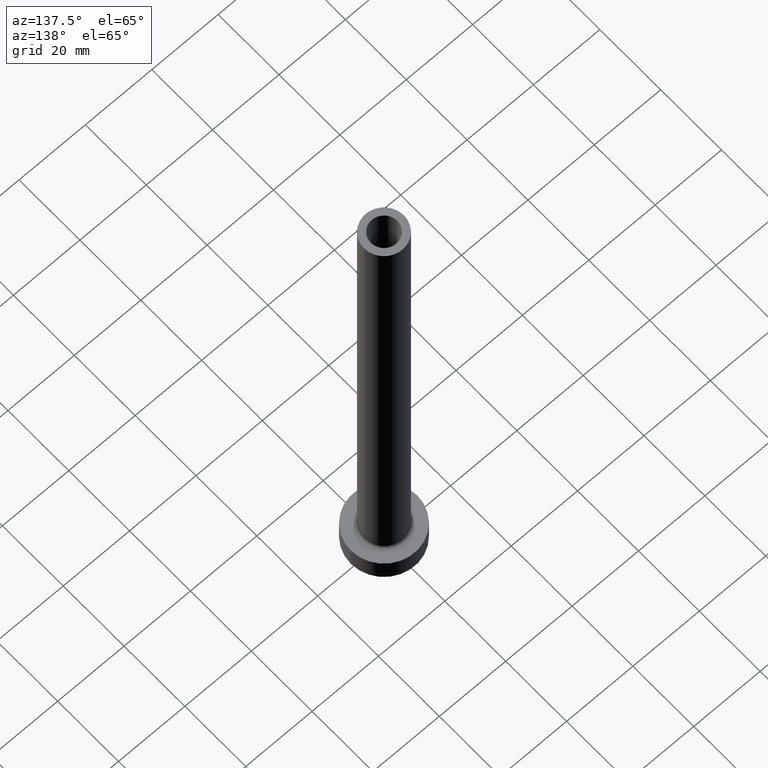
[diagram: clean part render]
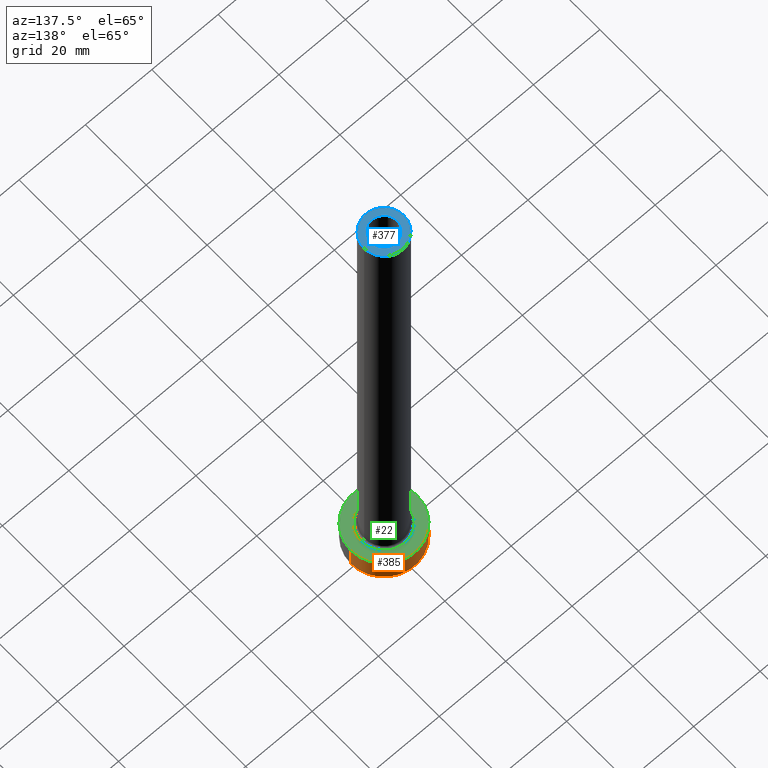
[diagram: same view with three faces highlighted in distinct colors, each labeled with its STEP entity id]
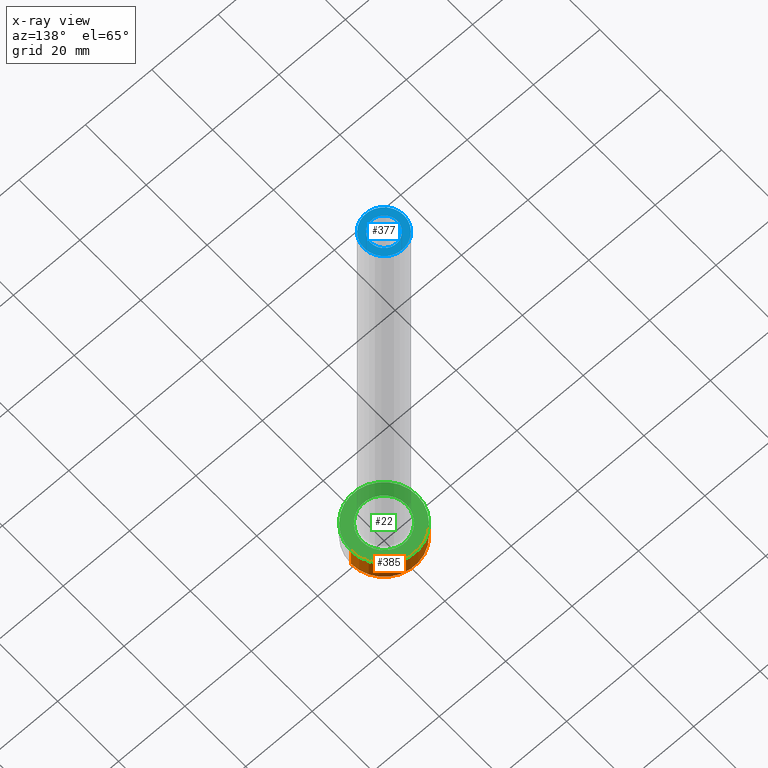
[diagram: x-ray of the same camera — body ghosted, the three highlighted faces saturated]
A machine part, auxiliary view with three faces highlighted in distinct colors.
The next image is the same camera in x-ray (body ghosted, the three faces saturated) — at least one of them is partly hidden behind the body in this view.
Their STEP definitions:

[orange] entity #385 — the highlighted cylindrical surface (partial cylindrical patch) has radius 10 mm, axis along (-0, -0, -1).
#16 = ORIENTED_EDGE ( 'NONE', *, *, #203, .F. ) ;
#17 = AXIS2_PLACEMENT_3D ( 'NONE', #457, #315, #384 ) ;
#41 = CARTESIAN_POINT ( 'NONE',  ( 10.00000000000000000, 1.224646799147353256E-15, 0.000000000000000000 ) ) ;
#57 = DIRECTION ( 'NONE',  ( 1.000000000000000000, 0.000000000000000000, 0.000000000000000000 ) ) ;
#63 = DIRECTION ( 'NONE',  ( -0.000000000000000000, -0.000000000000000000, -1.000000000000000000 ) ) ;
#84 = CARTESIAN_POINT ( 'NONE',  ( 0.000000000000000000, 0.000000000000000000, 0.000000000000000000 ) ) ;
#87 = VECTOR ( 'NONE', #63, 1000.000000000000000 ) ;
#91 = VERTEX_POINT ( 'NONE', #41 ) ;
#99 = ORIENTED_EDGE ( 'NONE', *, *, #119, .T. ) ;
#119 = EDGE_CURVE ( 'NONE', #91, #386, #227, .T. ) ;
#121 = DIRECTION ( 'NONE',  ( 0.000000000000000000, 0.000000000000000000, 1.000000000000000000 ) ) ;
#124 = DIRECTION ( 'NONE',  ( 1.000000000000000000, 0.000000000000000000, 0.000000000000000000 ) ) ;
#139 = CARTESIAN_POINT ( 'NONE',  ( -10.00000000000000000, 0.000000000000000000, 7.000000000000000000 ) ) ;
#193 = DIRECTION ( 'NONE',  ( -0.000000000000000000, -0.000000000000000000, -1.000000000000000000 ) ) ;
#195 = VERTEX_POINT ( 'NONE', #435 ) ;
#203 = EDGE_CURVE ( 'NONE', #195, #234, #394, .T. ) ;
#207 = CARTESIAN_POINT ( 'NONE',  ( -10.00000000000000000, 0.000000000000000000, 7.000000000000000000 ) ) ;
#209 = LINE ( 'NONE', #334, #237 ) ;
#212 = CARTESIAN_POINT ( 'NONE',  ( -10.00000000000000000, 0.000000000000000000, 0.000000000000000000 ) ) ;
#227 = CIRCLE ( 'NONE', #346, 10.00000000000000000 ) ;
#234 = VERTEX_POINT ( 'NONE', #139 ) ;
#237 = VECTOR ( 'NONE', #193, 1000.000000000000000 ) ;
#274 = EDGE_LOOP ( 'NONE', ( #16, #369, #99, #419 ) ) ;
#278 = AXIS2_PLACEMENT_3D ( 'NONE', #370, #121, #57 ) ;
#296 = EDGE_CURVE ( 'NONE', #234, #386, #305, .T. ) ;
#305 = LINE ( 'NONE', #207, #87 ) ;
#315 = DIRECTION ( 'NONE',  ( -0.000000000000000000, -0.000000000000000000, -1.000000000000000000 ) ) ;
#334 = CARTESIAN_POINT ( 'NONE',  ( 10.00000000000000000, 1.224646799147353256E-15, 7.000000000000000000 ) ) ;
#336 = DIRECTION ( 'NONE',  ( 0.000000000000000000, 0.000000000000000000, 1.000000000000000000 ) ) ;
#346 = AXIS2_PLACEMENT_3D ( 'NONE', #84, #336, #124 ) ;
#352 = FACE_OUTER_BOUND ( 'NONE', #274, .T. ) ;
#369 = ORIENTED_EDGE ( 'NONE', *, *, #413, .T. ) ;
#370 = CARTESIAN_POINT ( 'NONE',  ( 0.000000000000000000, 0.000000000000000000, 7.000000000000000000 ) ) ;
#384 = DIRECTION ( 'NONE',  ( -1.000000000000000000, 0.000000000000000000, 0.000000000000000000 ) ) ;
#385 = ADVANCED_FACE ( 'NONE', ( #352 ), #458, .T. ) ;
#386 = VERTEX_POINT ( 'NONE', #212 ) ;
#394 = CIRCLE ( 'NONE', #278, 10.00000000000000000 ) ;
#413 = EDGE_CURVE ( 'NONE', #195, #91, #209, .T. ) ;
#419 = ORIENTED_EDGE ( 'NONE', *, *, #296, .F. ) ;
#435 = CARTESIAN_POINT ( 'NONE',  ( 10.00000000000000000, 1.224646799147353256E-15, 7.000000000000000000 ) ) ;
#457 = CARTESIAN_POINT ( 'NONE',  ( 0.000000000000000000, 0.000000000000000000, 7.000000000000000000 ) ) ;
#458 = CYLINDRICAL_SURFACE ( 'NONE', #17, 10.00000000000000000 ) ;

[blue] entity #377 — the highlighted planar face has unit normal (0, 0, 1).
#2 = CARTESIAN_POINT ( 'NONE',  ( 0.000000000000000000, 0.000000000000000000, 160.0000000000000000 ) ) ;
#6 = AXIS2_PLACEMENT_3D ( 'NONE', #95, #412, #376 ) ;
#23 = CARTESIAN_POINT ( 'NONE',  ( 4.000000000000000000, 4.898587196589411843E-16, 160.0000000000000000 ) ) ;
#24 = DIRECTION ( 'NONE',  ( 0.000000000000000000, 0.000000000000000000, 1.000000000000000000 ) ) ;
#64 = FACE_BOUND ( 'NONE', #415, .T. ) ;
#68 = DIRECTION ( 'NONE',  ( 0.000000000000000000, 0.000000000000000000, 1.000000000000000000 ) ) ;
#95 = CARTESIAN_POINT ( 'NONE',  ( 0.000000000000000000, 0.000000000000000000, 160.0000000000000000 ) ) ;
#102 = CARTESIAN_POINT ( 'NONE',  ( 6.000000000000000888, 7.347880794884120722E-16, 160.0000000000000000 ) ) ;
#103 = EDGE_CURVE ( 'NONE', #192, #104, #444, .T. ) ;
#104 = VERTEX_POINT ( 'NONE', #102 ) ;
#108 = DIRECTION ( 'NONE',  ( 1.000000000000000000, 0.000000000000000000, 0.000000000000000000 ) ) ;
#143 = DIRECTION ( 'NONE',  ( 0.000000000000000000, 0.000000000000000000, 1.000000000000000000 ) ) ;
#153 = ORIENTED_EDGE ( 'NONE', *, *, #349, .F. ) ;
#170 = CIRCLE ( 'NONE', #411, 6.000000000000000888 ) ;
#171 = PLANE ( 'NONE',  #243 ) ;
#192 = VERTEX_POINT ( 'NONE', #229 ) ;
#202 = DIRECTION ( 'NONE',  ( 1.000000000000000000, 0.000000000000000000, 0.000000000000000000 ) ) ;
#204 = FACE_OUTER_BOUND ( 'NONE', #228, .T. ) ;
#206 = VERTEX_POINT ( 'NONE', #338 ) ;
#228 = EDGE_LOOP ( 'NONE', ( #456, #261 ) ) ;
#229 = CARTESIAN_POINT ( 'NONE',  ( -6.000000000000000888, 0.000000000000000000, 160.0000000000000000 ) ) ;
#243 = AXIS2_PLACEMENT_3D ( 'NONE', #273, #414, #378 ) ;
#261 = ORIENTED_EDGE ( 'NONE', *, *, #373, .T. ) ;
#266 = EDGE_CURVE ( 'NONE', #206, #317, #361, .T. ) ;
#273 = CARTESIAN_POINT ( 'NONE',  ( 0.000000000000000000, 0.000000000000000000, 160.0000000000000000 ) ) ;
#310 = CARTESIAN_POINT ( 'NONE',  ( 0.000000000000000000, 0.000000000000000000, 160.0000000000000000 ) ) ;
#317 = VERTEX_POINT ( 'NONE', #23 ) ;
#322 = CARTESIAN_POINT ( 'NONE',  ( 0.000000000000000000, 0.000000000000000000, 160.0000000000000000 ) ) ;
#338 = CARTESIAN_POINT ( 'NONE',  ( -4.000000000000000000, 0.000000000000000000, 160.0000000000000000 ) ) ;
#349 = EDGE_CURVE ( 'NONE', #317, #206, #453, .T. ) ;
#354 = DIRECTION ( 'NONE',  ( 1.000000000000000000, 0.000000000000000000, 0.000000000000000000 ) ) ;
#357 = ORIENTED_EDGE ( 'NONE', *, *, #266, .F. ) ;
#361 = CIRCLE ( 'NONE', #461, 4.000000000000000000 ) ;
#373 = EDGE_CURVE ( 'NONE', #104, #192, #170, .T. ) ;
#376 = DIRECTION ( 'NONE',  ( 1.000000000000000000, 0.000000000000000000, 0.000000000000000000 ) ) ;
#377 = ADVANCED_FACE ( 'NONE', ( #64, #204 ), #171, .T. ) ;
#378 = DIRECTION ( 'NONE',  ( 1.000000000000000000, 0.000000000000000000, -0.000000000000000000 ) ) ;
#411 = AXIS2_PLACEMENT_3D ( 'NONE', #310, #24, #202 ) ;
#412 = DIRECTION ( 'NONE',  ( 0.000000000000000000, 0.000000000000000000, 1.000000000000000000 ) ) ;
#414 = DIRECTION ( 'NONE',  ( 0.000000000000000000, 0.000000000000000000, 1.000000000000000000 ) ) ;
#415 = EDGE_LOOP ( 'NONE', ( #357, #153 ) ) ;
#421 = AXIS2_PLACEMENT_3D ( 'NONE', #2, #68, #354 ) ;
#444 = CIRCLE ( 'NONE', #421, 6.000000000000000888 ) ;
#453 = CIRCLE ( 'NONE', #6, 4.000000000000000000 ) ;
#456 = ORIENTED_EDGE ( 'NONE', *, *, #103, .T. ) ;
#461 = AXIS2_PLACEMENT_3D ( 'NONE', #322, #143, #108 ) ;

[green] entity #22 — the highlighted planar face has unit normal (0, 0, 1).
#5 = DIRECTION ( 'NONE',  ( 1.000000000000000000, 0.000000000000000000, -0.000000000000000000 ) ) ;
#8 = DIRECTION ( 'NONE',  ( 1.000000000000000000, 0.000000000000000000, 0.000000000000000000 ) ) ;
#19 = DIRECTION ( 'NONE',  ( -0.000000000000000000, -0.000000000000000000, -1.000000000000000000 ) ) ;
#22 = ADVANCED_FACE ( 'NONE', ( #294, #332 ), #327, .T. ) ;
#56 = EDGE_CURVE ( 'NONE', #69, #321, #105, .T. ) ;
#57 = DIRECTION ( 'NONE',  ( 1.000000000000000000, 0.000000000000000000, 0.000000000000000000 ) ) ;
#60 = AXIS2_PLACEMENT_3D ( 'NONE', #406, #233, #440 ) ;
#69 = VERTEX_POINT ( 'NONE', #382 ) ;
#105 = CIRCLE ( 'NONE', #60, 6.700000000000001066 ) ;
#112 = EDGE_CURVE ( 'NONE', #234, #195, #136, .T. ) ;
#118 = EDGE_LOOP ( 'NONE', ( #351, #126 ) ) ;
#121 = DIRECTION ( 'NONE',  ( 0.000000000000000000, 0.000000000000000000, 1.000000000000000000 ) ) ;
#126 = ORIENTED_EDGE ( 'NONE', *, *, #56, .T. ) ;
#132 = EDGE_CURVE ( 'NONE', #321, #69, #312, .T. ) ;
#136 = CIRCLE ( 'NONE', #244, 10.00000000000000000 ) ;
#139 = CARTESIAN_POINT ( 'NONE',  ( -10.00000000000000000, 0.000000000000000000, 7.000000000000000000 ) ) ;
#155 = DIRECTION ( 'NONE',  ( 0.000000000000000000, 0.000000000000000000, 1.000000000000000000 ) ) ;
#187 = DIRECTION ( 'NONE',  ( 0.000000000000000000, 0.000000000000000000, 1.000000000000000000 ) ) ;
#195 = VERTEX_POINT ( 'NONE', #435 ) ;
#200 = ORIENTED_EDGE ( 'NONE', *, *, #203, .T. ) ;
#203 = EDGE_CURVE ( 'NONE', #195, #234, #394, .T. ) ;
#224 = CARTESIAN_POINT ( 'NONE',  ( 0.000000000000000000, 0.000000000000000000, 7.000000000000000000 ) ) ;
#230 = CARTESIAN_POINT ( 'NONE',  ( 0.000000000000000000, 0.000000000000000000, 7.000000000000000000 ) ) ;
#232 = DIRECTION ( 'NONE',  ( 1.000000000000000000, 0.000000000000000000, 0.000000000000000000 ) ) ;
#233 = DIRECTION ( 'NONE',  ( -0.000000000000000000, -0.000000000000000000, -1.000000000000000000 ) ) ;
#234 = VERTEX_POINT ( 'NONE', #139 ) ;
#244 = AXIS2_PLACEMENT_3D ( 'NONE', #224, #155, #232 ) ;
#258 = CARTESIAN_POINT ( 'NONE',  ( 0.000000000000000000, 0.000000000000000000, 7.000000000000000000 ) ) ;
#278 = AXIS2_PLACEMENT_3D ( 'NONE', #370, #121, #57 ) ;
#294 = FACE_BOUND ( 'NONE', #118, .T. ) ;
#308 = CARTESIAN_POINT ( 'NONE',  ( 6.700000000000001066, 0.000000000000000000, 7.000000000000006217 ) ) ;
#312 = CIRCLE ( 'NONE', #428, 6.700000000000001066 ) ;
#321 = VERTEX_POINT ( 'NONE', #308 ) ;
#327 = PLANE ( 'NONE',  #366 ) ;
#332 = FACE_OUTER_BOUND ( 'NONE', #389, .T. ) ;
#351 = ORIENTED_EDGE ( 'NONE', *, *, #132, .T. ) ;
#366 = AXIS2_PLACEMENT_3D ( 'NONE', #230, #187, #5 ) ;
#370 = CARTESIAN_POINT ( 'NONE',  ( 0.000000000000000000, 0.000000000000000000, 7.000000000000000000 ) ) ;
#382 = CARTESIAN_POINT ( 'NONE',  ( -6.700000000000001066, 8.205133554287267548E-16, 7.000000000000006217 ) ) ;
#389 = EDGE_LOOP ( 'NONE', ( #442, #200 ) ) ;
#394 = CIRCLE ( 'NONE', #278, 10.00000000000000000 ) ;
#406 = CARTESIAN_POINT ( 'NONE',  ( 0.000000000000000000, 0.000000000000000000, 7.000000000000000000 ) ) ;
#428 = AXIS2_PLACEMENT_3D ( 'NONE', #258, #19, #8 ) ;
#435 = CARTESIAN_POINT ( 'NONE',  ( 10.00000000000000000, 1.224646799147353256E-15, 7.000000000000000000 ) ) ;
#440 = DIRECTION ( 'NONE',  ( 1.000000000000000000, 0.000000000000000000, 0.000000000000000000 ) ) ;
#442 = ORIENTED_EDGE ( 'NONE', *, *, #112, .T. ) ;